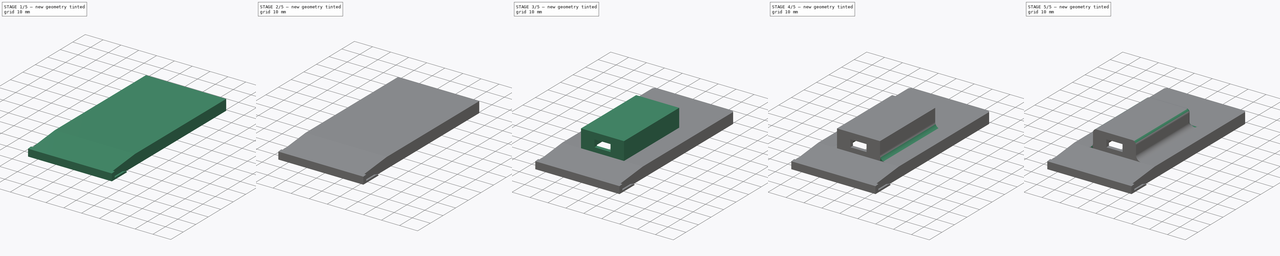
[diagram: build sequence overview — one tinted view per stage of 5, left to right]
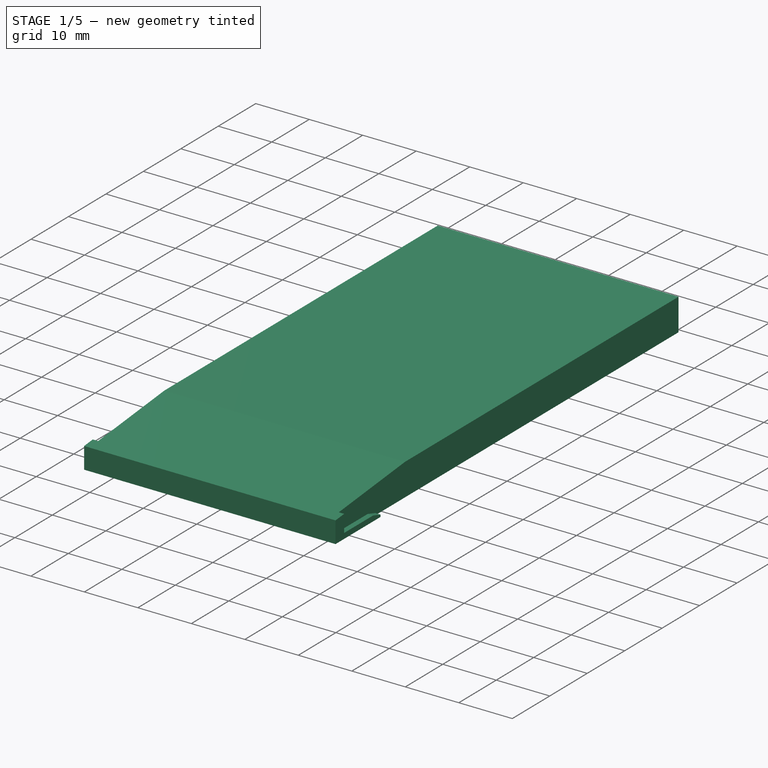
[diagram: stage 1 of 5 — iso view after this stage's code; geometry added in this stage tinted green]
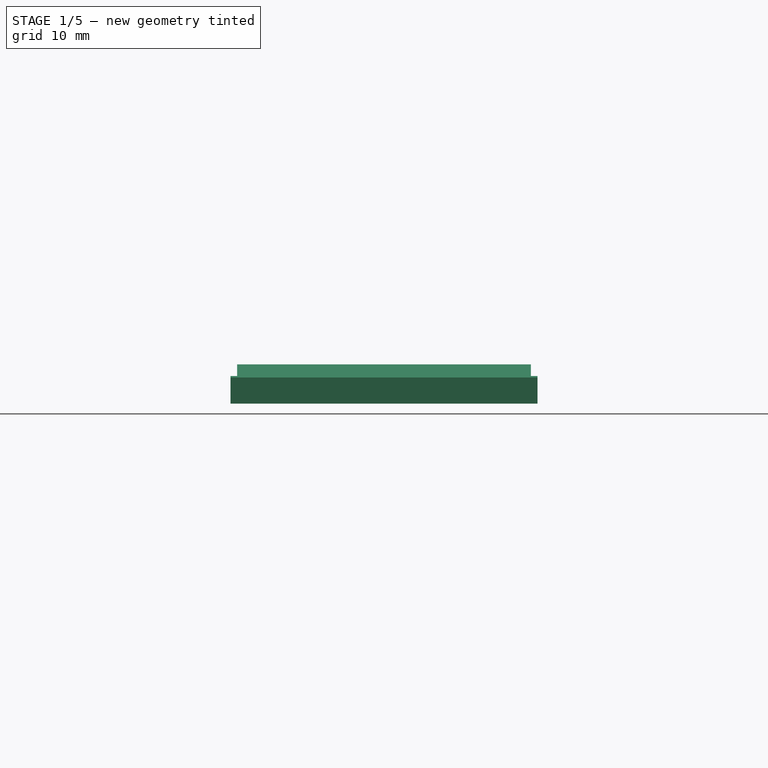
[diagram: stage 1 of 5 — front view after this stage's code; geometry added in this stage tinted green]
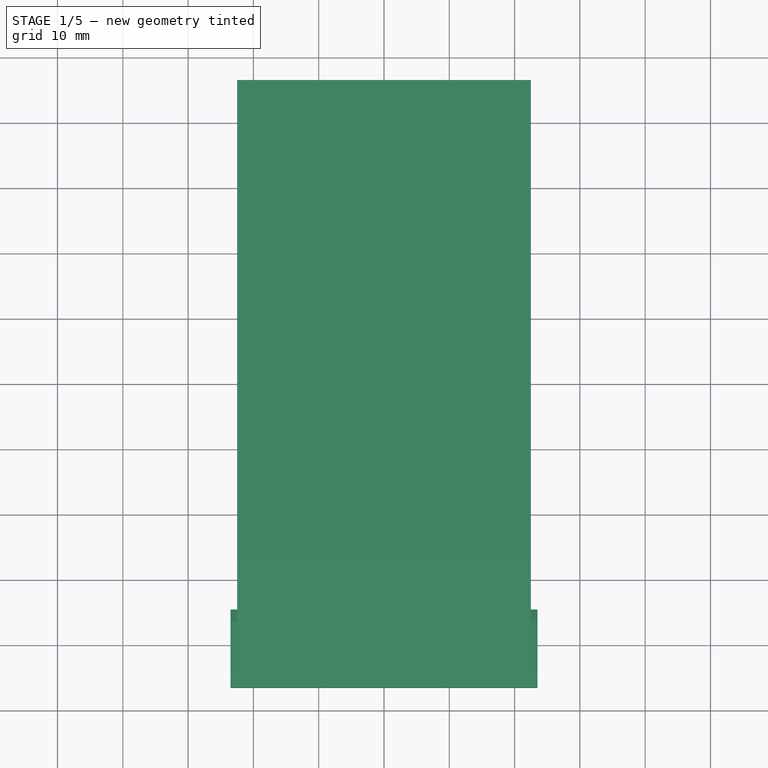
[diagram: stage 1 of 5 — top view after this stage's code; geometry added in this stage tinted green]
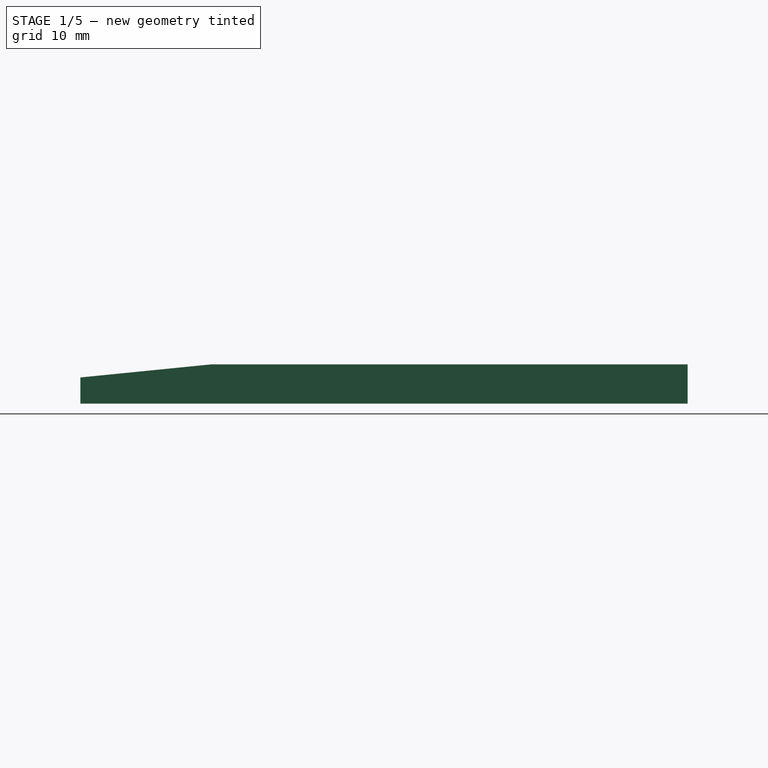
[diagram: stage 1 of 5 — right view after this stage's code; geometry added in this stage tinted green]
FCSTD DOCUMENT  (FreeCAD 0.20R29410 (Git))
Label: jumper_t16_bat_cover
License: All rights reserved
LicenseURL: http://en.wikipedia.org/wiki/All_rights_reserved
objects: Sketcher::SketchObject×13, PartDesign::Fillet×12, PartDesign::Pad×7, PartDesign::Pocket×6, PartDesign::Body×1
note: 64 computed .brp shape members not serialized (recipe doc carries the construction recipe); baked Part::Feature solids carry a one-line shape summary decoded from their .brp

FEATURE [Sketcher::SketchObject] Sketch
  FullyConstrained = true
  MapMode = 5
  Support = -> [XY_Plane]
  sketch-geometry (4):
    g0: LineSegment StartX=-22.5 StartY=46.5 StartZ=0 EndX=22.5 EndY=46.5 EndZ=0
    g1: LineSegment StartX=22.5 StartY=46.5 StartZ=0 EndX=22.5 EndY=-46.5 EndZ=0
    g2: LineSegment StartX=22.5 StartY=-46.5 StartZ=0 EndX=-22.5 EndY=-46.5 EndZ=0
    g3: LineSegment StartX=-22.5 StartY=-46.5 StartZ=0 EndX=-22.5 EndY=46.5 EndZ=0
  constraints (10):
    c: Coincident(g0,g1)
    c: Coincident(g1,g2)
    c: Coincident(g2,g3)
    c: Coincident(g3,g0)
    c: Horizontal(g0)
    c: Vertical(g3)
    c: DistanceX(g2,g2) = 45
    c: Symmetric(g2,g1,g-2)
    c: Symmetric(g1,g0,g-1)
    c: DistanceY(g1,g1) = 93
FEATURE [PartDesign::Pad] Pad
  Direction = (0,0,1)
  Length = 6
  Length2 = 10
  Profile = -> Sketch
  ReferenceAxis = -> Sketch [N_Axis]
  Type = 0
FEATURE [Sketcher::SketchObject] Sketch001
  ExternalGeometry = -> [Pad]
  FullyConstrained = true
  MapMode = 5
  Placement = pos=(22.5,0,0) rot=(0.57735,0.57735,0.57735;2.0944rad)
  Support = -> [Pad]
  sketch-geometry (3):
    g0: LineSegment StartX=-46.5 StartY=4 StartZ=0 EndX=-26.5 EndY=6 EndZ=0
    g1: LineSegment StartX=-46.5 StartY=6 StartZ=0 EndX=-26.5 EndY=6 EndZ=0
    g2: LineSegment StartX=-46.5 StartY=4 StartZ=0 EndX=-46.5 EndY=6 EndZ=0
  constraints (8):
    c: PointOnObject(g0,g-4)
    c: PointOnObject(g0,g-3)
    c: Coincident(g1,g-4)
    c: Coincident(g1,g0)
    c: Coincident(g2,g0)
    c: Coincident(g2,g1)
    c: DistanceX(g1,g1) = 20
    c: DistanceY(g2,g2) = 2
FEATURE [PartDesign::Pocket] Pocket
  BaseFeature = -> Pad
  Direction = (-1,0,0)
  Length = 45
  Length2 = 5
  Profile = -> Sketch001
  ReferenceAxis = -> Sketch001 [N_Axis]
  Type = 0
FEATURE [Sketcher::SketchObject] Sketch002
  ExternalGeometry = -> [Pocket]
  FullyConstrained = true
  MapMode = 5
  Placement = pos=(22.5,0,0) rot=(0.57735,0.57735,0.57735;2.0944rad)
  Support = -> [Pocket]
  sketch-geometry (7):
    g0: LineSegment StartX=-46.5 StartY=0 StartZ=0 EndX=-34.5 EndY=0 EndZ=0
    g1: LineSegment StartX=-34.5 StartY=0 StartZ=0 EndX=-34.5 EndY=0.4 EndZ=0
    g2: LineSegment StartX=-36.5 StartY=1 StartZ=0 EndX=-44.2 EndY=1 EndZ=0
    g3: LineSegment StartX=-44.2 StartY=1 StartZ=0 EndX=-44.2 EndY=4.23 EndZ=0
    g4: LineSegment StartX=-44.2 StartY=4.23 StartZ=0 EndX=-46.5 EndY=4 EndZ=0
    g5: LineSegment StartX=-46.5 StartY=4 StartZ=0 EndX=-46.5 EndY=0 EndZ=0
    g6: LineSegment StartX=-36.5 StartY=1 StartZ=0 EndX=-34.5 EndY=0.4 EndZ=0
  constraints (19):
    c: Coincident(g0,g-4)
    c: PointOnObject(g0,g-4)
    c: Coincident(g1,g0)
    c: Vertical(g1)
    c: Horizontal(g2)
    c: Coincident(g3,g2)
    c: PointOnObject(g3,g-5)
    c: Vertical(g3)
    c: Coincident(g4,g3)
    c: Coincident(g4,g-5)
    c: Coincident(g5,g4)
    c: Coincident(g5,g0)
    c: DistanceX(g0,g0) = 12
    c: DistanceY(g1,g1) = 0.4
    c: DistanceY(g0,g2) = 1
    c: Coincident(g6,g2)
    c: Coincident(g6,g1)
    c: DistanceX(g2,g1) = 2
    c: DistanceX(g0,g2) = 2.3
FEATURE [PartDesign::Pad] Pad001
  BaseFeature = -> Pocket
  Direction = (1,0,0)
  Length = 1
  Length2 = 10
  Profile = -> Sketch002
  ReferenceAxis = -> Sketch002 [N_Axis]
  Type = 0
FEATURE [Sketcher::SketchObject] Sketch003
  ExternalGeometry = -> [Pad001]
  FullyConstrained = true
  MapMode = 5
  Placement = pos=(-22.5,0,0) rot=(0.57735,-0.57735,-0.57735;2.0944rad)
  Support = -> [Pad001]
  sketch-geometry (7):
    g0: LineSegment StartX=34.5 StartY=0 StartZ=0 EndX=46.5 EndY=0 EndZ=0
    g1: LineSegment StartX=46.5 StartY=0 StartZ=0 EndX=46.5 EndY=4 EndZ=0
    g2: LineSegment StartX=46.5 StartY=4 StartZ=0 EndX=44.2 EndY=4.23 EndZ=0
    g3: LineSegment StartX=44.2 StartY=4.23 StartZ=0 EndX=44.2 EndY=1 EndZ=0
    g4: LineSegment StartX=44.2 StartY=1 StartZ=0 EndX=36.5 EndY=1 EndZ=0
    g5: LineSegment StartX=36.5 StartY=1 StartZ=0 EndX=34.5 EndY=0.4 EndZ=0
    g6: LineSegment StartX=34.5 StartY=0.4 StartZ=0 EndX=34.5 EndY=0 EndZ=0
  constraints (19):
    c: PointOnObject(g0,g-5)
    c: Coincident(g0,g-5)
    c: Coincident(g1,g0)
    c: Coincident(g1,g-4)
    c: Coincident(g2,g1)
    c: PointOnObject(g2,g-4)
    c: Coincident(g3,g2)
    c: Vertical(g3)
    c: Coincident(g4,g3)
    c: Horizontal(g4)
    c: Coincident(g5,g4)
    c: Coincident(g6,g5)
    c: Coincident(g6,g0)
    c: Vertical(g6)
    c: DistanceY(g6,g6) = 0.4
    c: DistanceY(g0,g3) = 1
    c: DistanceX(g5,g4) = 2
    c: DistanceX(g3,g0) = 2.3
    c: DistanceX(g0,g0) = 12
FEATURE [PartDesign::Pad] Pad002
  BaseFeature = -> Pad001
  Direction = (-1,0,0)
  Length = 1
  Length2 = 10
  Profile = -> Sketch003
  ReferenceAxis = -> Sketch003 [N_Axis]
  Type = 0
FEATURE [Sketcher::SketchObject] Sketch004
  ExternalGeometry = -> [Pad002]
  FullyConstrained = true
  MapMode = 5
  Placement = pos=(0,0,0) rot=(0.57735,0.57735,0.57735;2.0944rad)
  Support = -> [YZ_Plane]
  sketch-geometry (5):
    g0: LineSegment StartX=45 StartY=6.2e-15 StartZ=0 EndX=45 EndY=4.5 EndZ=0
    g1: LineSegment StartX=45 StartY=4.5 StartZ=0 EndX=-26.5 EndY=4.5 EndZ=0
    g2: LineSegment StartX=-26.5 StartY=4.5 StartZ=0 EndX=-45 EndY=2.65 EndZ=0
    g3: LineSegment StartX=-45 StartY=2.65 StartZ=0 EndX=-45 EndY=-1.91e-14 EndZ=0
    g4: LineSegment StartX=-45 StartY=-1.9e-14 StartZ=0 EndX=45 EndY=6.2e-15 EndZ=0
  constraints (15):
    c: PointOnObject(g0,g-8)
    c: Vertical(g0)
    c: Coincident(g1,g0)
    c: Horizontal(g1)
    c: Coincident(g2,g1)
    c: Coincident(g3,g2)
    c: PointOnObject(g3,g-9)
    c: Vertical(g3)
    c: Coincident(g4,g3)
    c: Coincident(g4,g0)
    c: DistanceX(g0,g-8) = 1.5
    c: DistanceY(g0,g-4) = 1.5
    c: DistanceX(g-7,g1) = 20
    c: DistanceX(g-7,g2) = 1.5
    c: Parallel(g-5,g2)
FEATURE [PartDesign::Pocket] Pocket001
  BaseFeature = -> Pad002
  Direction = (-1,2e-16,-3e-16)
  Length = 42
  Length2 = 5
  Midplane = true
  Profile = -> Sketch004
  ReferenceAxis = -> Sketch004 [N_Axis]
  Type = 0
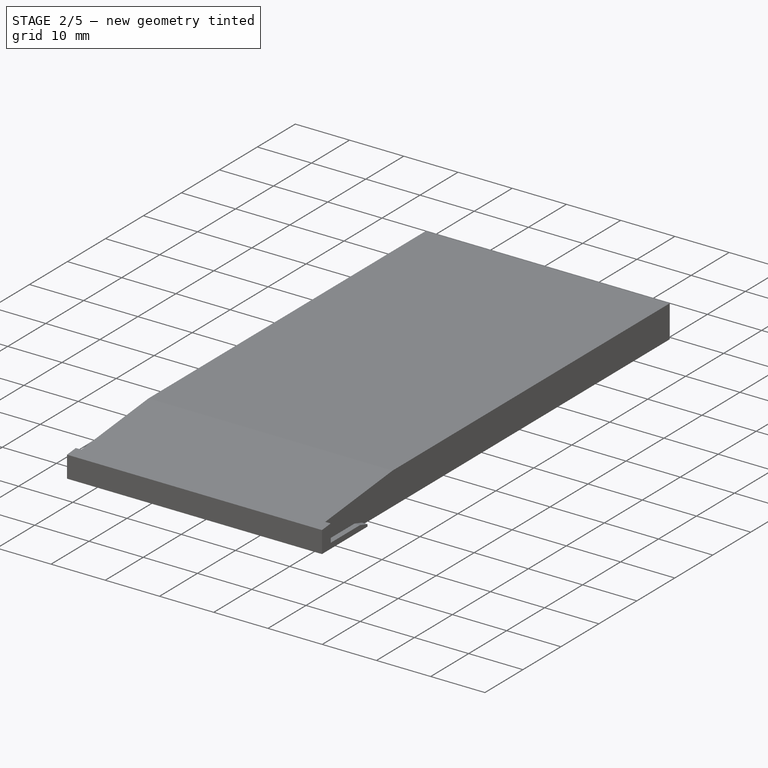
[diagram: stage 2 of 5 — iso view after this stage's code; geometry added in this stage tinted green]
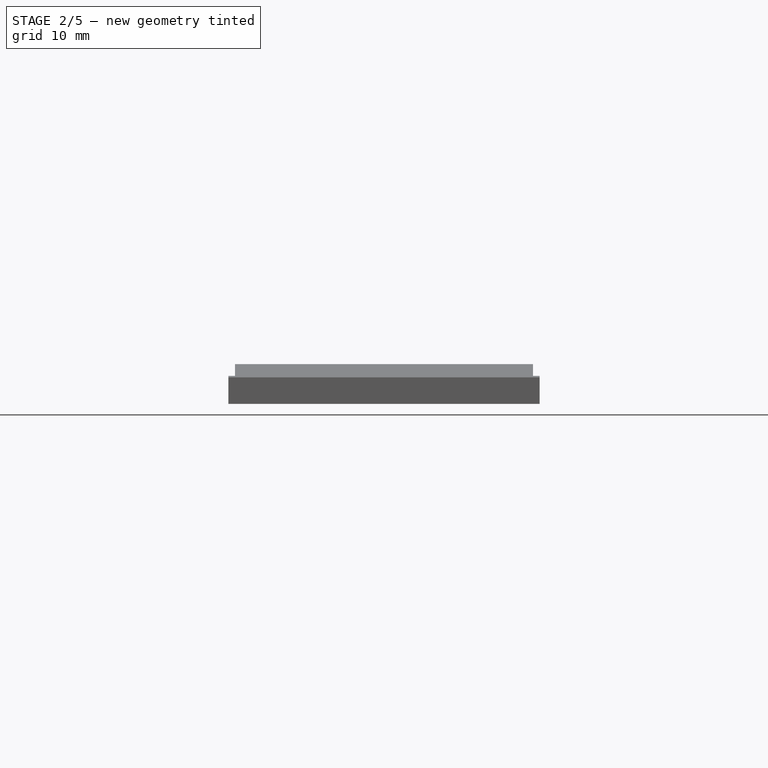
[diagram: stage 2 of 5 — front view after this stage's code; geometry added in this stage tinted green]
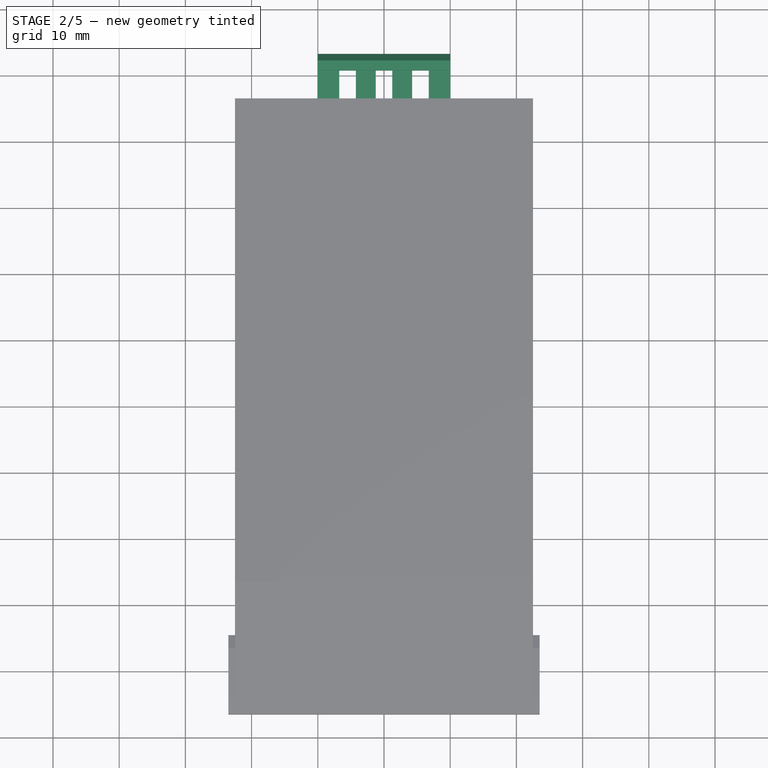
[diagram: stage 2 of 5 — top view after this stage's code; geometry added in this stage tinted green]
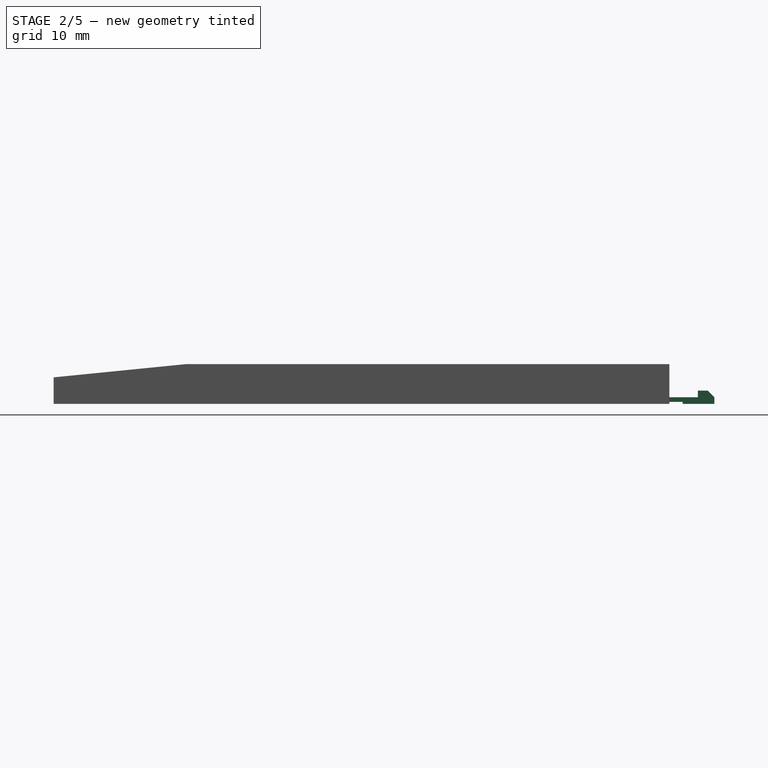
[diagram: stage 2 of 5 — right view after this stage's code; geometry added in this stage tinted green]
FEATURE [Sketcher::SketchObject] Sketch005
  ExternalGeometry = -> [Pocket001]
  FullyConstrained = true
  MapMode = 5
  Placement = pos=(0,0,0) rot=(0.57735,0.57735,0.57735;2.0944rad)
  Support = -> [YZ_Plane]
  sketch-geometry (7):
    g0: LineSegment StartX=46.5 StartY=6.7e-15 StartZ=0 EndX=53.3 EndY=0 EndZ=0
    g1: LineSegment StartX=53.3 StartY=0 StartZ=0 EndX=53.3 EndY=1 EndZ=0
    g2: LineSegment StartX=53.3 StartY=1 StartZ=0 EndX=52.3 EndY=2 EndZ=0
    g3: LineSegment StartX=52.3 StartY=2 StartZ=0 EndX=50.8 EndY=2 EndZ=0
    g4: LineSegment StartX=50.8 StartY=2 StartZ=0 EndX=50.8 EndY=1 EndZ=0
    g5: LineSegment StartX=50.8 StartY=1 StartZ=0 EndX=46.5 EndY=1 EndZ=0
    g6: LineSegment StartX=46.5 StartY=1 StartZ=0 EndX=46.5 EndY=6.7e-15 EndZ=0
  constraints (20):
    c: Coincident(g0,g-3)
    c: PointOnObject(g0,g-1)
    c: Coincident(g1,g0)
    c: Vertical(g1)
    c: Coincident(g2,g1)
    c: Coincident(g3,g2)
    c: Horizontal(g3)
    c: Coincident(g4,g3)
    c: Vertical(g4)
    c: Coincident(g5,g4)
    c: PointOnObject(g5,g-3)
    c: Horizontal(g5)
    c: Coincident(g6,g5)
    c: Coincident(g6,g0)
    c: DistanceY(g1,g1) = 1
    c: Angle(g2) = 2.35619
    c: DistanceY(g0,g2) = 2
    c: DistanceX(g4,g0) = 2.5
    c: DistanceX(g0,g0) = 6.8
    c: DistanceY(g6,g6) = 1
FEATURE [PartDesign::Pad] Pad003
  BaseFeature = -> Pocket001
  Direction = (1,-2e-16,3e-16)
  Length = 20
  Length2 = 10
  Midplane = true
  Profile = -> Sketch005
  ReferenceAxis = -> Sketch005 [N_Axis]
  Type = 0
FEATURE [Sketcher::SketchObject] Sketch006
  ExternalGeometry = -> [Pad003]
  FullyConstrained = true
  MapMode = 5
  Placement = pos=(-3e-16,2e-16,1) rot=(0,0,1;0rad)
  Support = -> [Pad003]
  sketch-geometry (12):
    g0: LineSegment StartX=-6.75 StartY=50.8 StartZ=0 EndX=-4.25 EndY=50.8 EndZ=0
    g1: LineSegment StartX=-4.25 StartY=50.8 StartZ=0 EndX=-4.25 EndY=46.5 EndZ=0
    g2: LineSegment StartX=-4.25 StartY=46.5 StartZ=0 EndX=-6.75 EndY=46.5 EndZ=0
    g3: LineSegment StartX=-6.75 StartY=46.5 StartZ=0 EndX=-6.75 EndY=50.8 EndZ=0
    g4: LineSegment StartX=-1.25 StartY=50.8 StartZ=0 EndX=1.25 EndY=50.8 EndZ=0
    g5: LineSegment StartX=1.25 StartY=50.8 StartZ=0 EndX=1.25 EndY=46.5 EndZ=0
    g6: LineSegment StartX=1.25 StartY=46.5 StartZ=0 EndX=-1.25 EndY=46.5 EndZ=0
    g7: LineSegment StartX=-1.25 StartY=46.5 StartZ=0 EndX=-1.25 EndY=50.8 EndZ=0
    g8: LineSegment StartX=4.25 StartY=50.8 StartZ=0 EndX=6.75 EndY=50.8 EndZ=0
    g9: LineSegment StartX=6.75 StartY=50.8 StartZ=0 EndX=6.75 EndY=46.5 EndZ=0
    g10: LineSegment StartX=6.75 StartY=46.5 StartZ=0 EndX=4.25 EndY=46.5 EndZ=0
    g11: LineSegment StartX=4.25 StartY=46.5 StartZ=0 EndX=4.25 EndY=50.8 EndZ=0
  constraints (35):
    c: Coincident(g0,g1)
    c: Coincident(g1,g2)
    c: Coincident(g2,g3)
    c: Coincident(g3,g0)
    c: Horizontal(g0)
    c: Horizontal(g2)
    c: Vertical(g1)
    c: Vertical(g3)
    c: PointOnObject(g0,g-4)
    c: PointOnObject(g1,g-3)
    c: Coincident(g4,g5)
    c: Coincident(g5,g6)
    c: Coincident(g6,g7)
    c: Coincident(g7,g4)
    c: Horizontal(g6)
    c: Vertical(g5)
    c: Vertical(g7)
    c: PointOnObject(g4,g-4)
    c: PointOnObject(g5,g-3)
    c: Coincident(g8,g9)
    c: Coincident(g9,g10)
    c: Coincident(g10,g11)
    c: Coincident(g11,g8)
    c: Horizontal(g8)
    c: Horizontal(g10)
    c: Vertical(g9)
    c: Vertical(g11)
    c: PointOnObject(g8,g-4)
    c: PointOnObject(g9,g-3)
    c: Equal(g10,g6)
    c: Equal(g6,g2)
    c: DistanceX(g8,g8) = 2.5
    c: Symmetric(g4,g4,g-2)
    c: DistanceX(g0,g4) = 3
    c: DistanceX(g4,g8) = 3
FEATURE [PartDesign::Pocket] Pocket002
  BaseFeature = -> Pad003
  Direction = (3e-16,-2e-16,-1)
  Length = 5
  Length2 = 5
  Profile = -> Sketch006
  ReferenceAxis = -> Sketch006 [N_Axis]
  Type = 1
FEATURE [Sketcher::SketchObject] Sketch007
  ExternalGeometry = -> [Pocket002]
  FullyConstrained = true
  MapMode = 5
  Placement = pos=(0,0,5.22e-14) rot=(1,0,0;3.14159rad)
  Support = -> [Pocket002]
  sketch-geometry (4):
    g0: LineSegment StartX=-10 StartY=-46.5 StartZ=0 EndX=10 EndY=-46.5 EndZ=0
    g1: LineSegment StartX=10 StartY=-46.5 StartZ=0 EndX=10 EndY=-48.5 EndZ=0
    g2: LineSegment StartX=10 StartY=-48.5 StartZ=0 EndX=-10 EndY=-48.5 EndZ=0
    g3: LineSegment StartX=-10 StartY=-48.5 StartZ=0 EndX=-10 EndY=-46.5 EndZ=0
  constraints (11):
    c: Coincident(g0,g1)
    c: Coincident(g1,g2)
    c: Coincident(g2,g3)
    c: Coincident(g3,g0)
    c: Horizontal(g0)
    c: Horizontal(g2)
    c: Vertical(g1)
    c: Vertical(g3)
    c: Coincident(g0,g-3)
    c: PointOnObject(g1,g-4)
    c: DistanceY(g1,g1) = 2
FEATURE [PartDesign::Pocket] Pocket003
  BaseFeature = -> Pocket002
  Direction = (-3e-16,1.2e-15,1)
  Length = 0.3
  Length2 = 5
  Profile = -> Sketch007
  ReferenceAxis = -> Sketch007 [N_Axis]
  Type = 0
FEATURE [Sketcher::SketchObject] Sketch008
  ExternalGeometry = -> [Pocket003]
  FullyConstrained = true
  Placement = pos=(4.5,0,0) rot=(0.57735,0.57735,0.57735;2.0944rad)
  sketch-geometry (3):
    g0: LineSegment StartX=45 StartY=0 StartZ=0 EndX=33 EndY=4.5 EndZ=0
    g1: LineSegment StartX=33 StartY=4.5 StartZ=0 EndX=45 EndY=4.5 EndZ=0
    g2: LineSegment StartX=45 StartY=4.5 StartZ=0 EndX=45 EndY=0 EndZ=0
  constraints (7):
    c: Coincident(g0,g-3)
    c: PointOnObject(g0,g-4)
    c: Coincident(g1,g0)
    c: Coincident(g1,g-4)
    c: Coincident(g2,g1)
    c: Coincident(g2,g0)
    c: DistanceX(g1,g1) = 12
FEATURE [PartDesign::Pad] Pad004
  BaseFeature = -> Pocket003
  Direction = (1,0,0)
  Length = 1
  Length2 = 10
  Profile = -> Sketch008
  ReferenceAxis = -> Sketch008 [N_Axis]
  Type = 0
FEATURE [Sketcher::SketchObject] Sketch009
  ExternalGeometry = -> [Pad004]
  FullyConstrained = true
  Placement = pos=(-4.5,0,0) rot=(0.57735,0.57735,0.57735;2.0944rad)
  sketch-geometry (3):
    g0: LineSegment StartX=45 StartY=0 StartZ=0 EndX=45 EndY=4.5 EndZ=0
    g1: LineSegment StartX=45 StartY=4.5 StartZ=0 EndX=33 EndY=4.5 EndZ=0
    g2: LineSegment StartX=33 StartY=4.5 StartZ=0 EndX=45 EndY=0 EndZ=0
  constraints (7):
    c: Coincident(g0,g-4)
    c: Coincident(g0,g-4)
    c: Coincident(g1,g0)
    c: PointOnObject(g1,g-3)
    c: Coincident(g2,g1)
    c: Coincident(g2,g0)
    c: DistanceX(g1,g1) = 12
FEATURE [PartDesign::Pad] Pad005
  BaseFeature = -> Pad004
  Direction = (1,0,0)
  Length = 1
  Length2 = 10
  Profile = -> Sketch009
  ReferenceAxis = -> Sketch009 [N_Axis]
  Reversed = true
  Type = 0
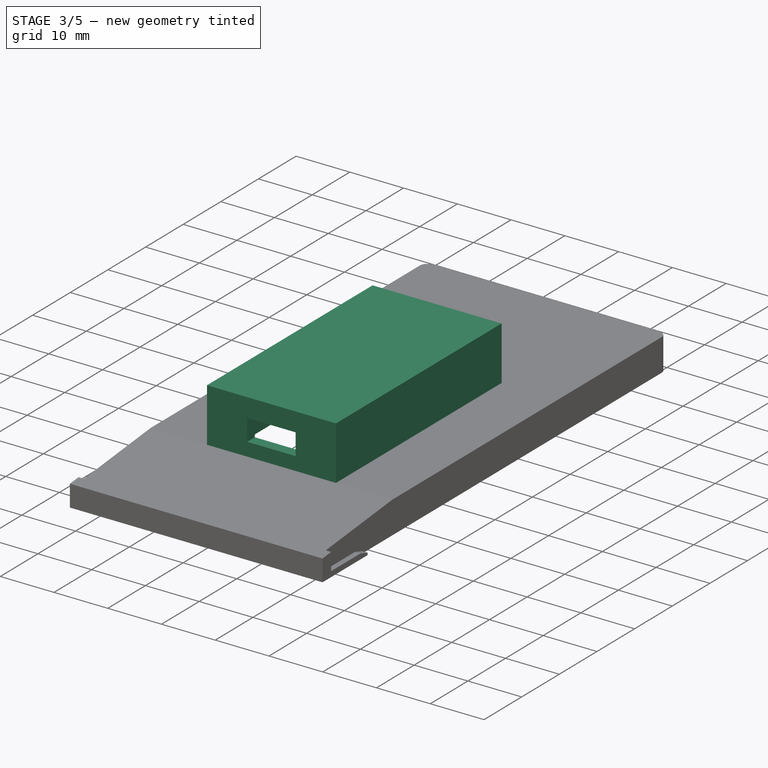
[diagram: stage 3 of 5 — iso view after this stage's code; geometry added in this stage tinted green]
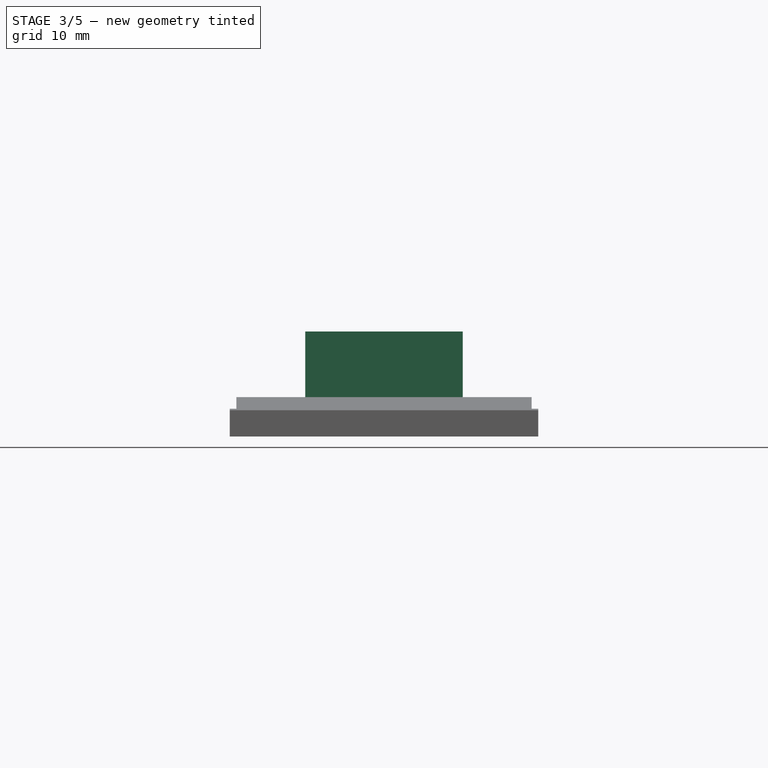
[diagram: stage 3 of 5 — front view after this stage's code; geometry added in this stage tinted green]
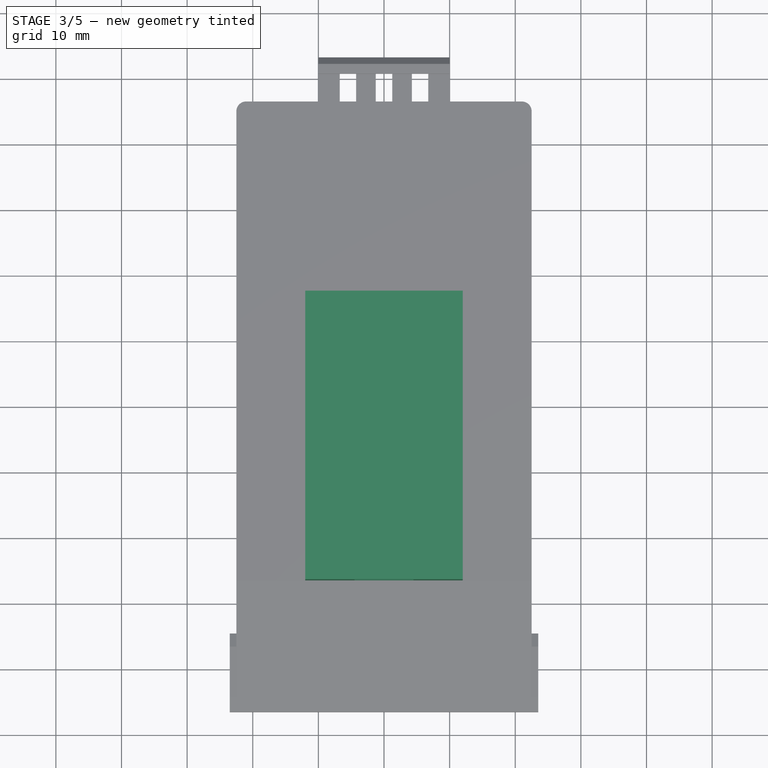
[diagram: stage 3 of 5 — top view after this stage's code; geometry added in this stage tinted green]
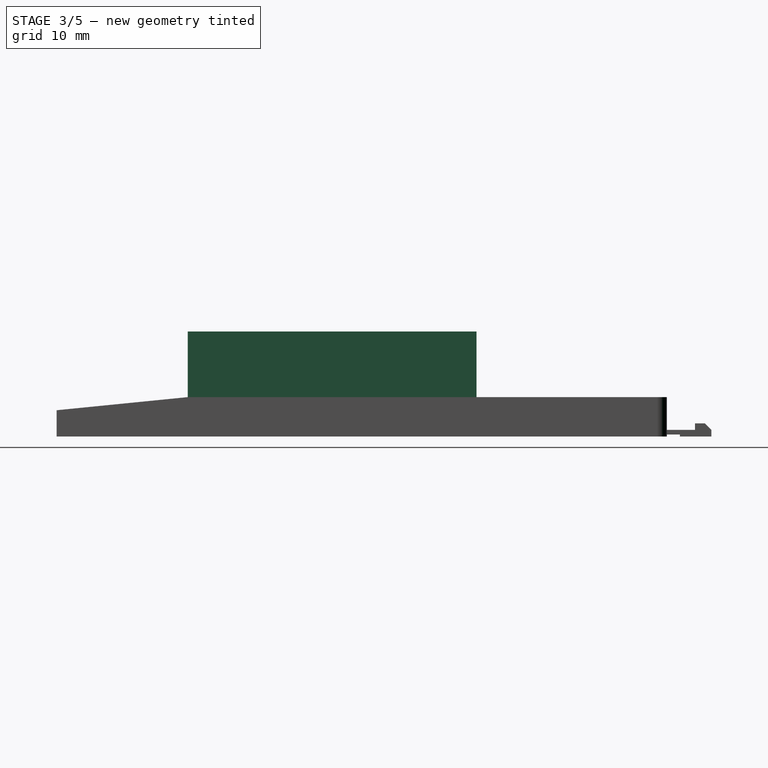
[diagram: stage 3 of 5 — right view after this stage's code; geometry added in this stage tinted green]
FEATURE [PartDesign::Fillet] Fillet
  Base = -> Pad005 [Edge14]
  BaseFeature = -> Pad005
  Radius = 1.5
  SupportTransform = false
  UseAllEdges = false
FEATURE [PartDesign::Fillet] Fillet001
  Base = -> Fillet [Edge6]
  BaseFeature = -> Fillet
  Radius = 1.5
  SupportTransform = false
  UseAllEdges = false
FEATURE [Sketcher::SketchObject] Sketch010
  ExternalGeometry = -> [Fillet001]
  FullyConstrained = true
  MapMode = 5
  Placement = pos=(0,0,6) rot=(0,0,1;0rad)
  Support = -> [Fillet001]
  sketch-geometry (4):
    g0: LineSegment StartX=-12 StartY=-26.5 StartZ=0 EndX=12 EndY=-26.5 EndZ=0
    g1: LineSegment StartX=12 StartY=-26.5 StartZ=0 EndX=12 EndY=17.5 EndZ=0
    g2: LineSegment StartX=12 StartY=17.5 StartZ=0 EndX=-12 EndY=17.5 EndZ=0
    g3: LineSegment StartX=-12 StartY=17.5 StartZ=0 EndX=-12 EndY=-26.5 EndZ=0
  constraints (11):
    c: Coincident(g0,g1)
    c: Coincident(g1,g2)
    c: Coincident(g2,g3)
    c: Coincident(g3,g0)
    c: Horizontal(g2)
    c: Vertical(g1)
    c: Vertical(g3)
    c: PointOnObject(g0,g-3)
    c: DistanceX(g2,g2) = 24
    c: DistanceY(g1,g1) = 44
    c: Symmetric(g0,g0,g-2)
FEATURE [PartDesign::Pad] Pad006
  BaseFeature = -> Fillet001
  Direction = (0,0,1)
  Length = 10
  Length2 = 10
  Profile = -> Sketch010
  ReferenceAxis = -> Sketch010 [N_Axis]
  Type = 0
FEATURE [Sketcher::SketchObject] Sketch011
  ExternalGeometry = -> [Pad006]
  FullyConstrained = true
  MapMode = 5
  Placement = pos=(0,-26.5,0) rot=(1,0,0;1.5708rad)
  Support = -> [Pad006]
  sketch-geometry (4):
    g0: LineSegment StartX=-4.5 StartY=12.5 StartZ=0 EndX=4.5 EndY=12.5 EndZ=0
    g1: LineSegment StartX=4.5 StartY=12.5 StartZ=0 EndX=4.5 EndY=8.5 EndZ=0
    g2: LineSegment StartX=4.5 StartY=8.5 StartZ=0 EndX=-4.5 EndY=8.5 EndZ=0
    g3: LineSegment StartX=-4.5 StartY=8.5 StartZ=0 EndX=-4.5 EndY=12.5 EndZ=0
  constraints (11):
    c: Coincident(g0,g1)
    c: Coincident(g1,g2)
    c: Coincident(g2,g3)
    c: Coincident(g3,g0)
    c: Horizontal(g2)
    c: Vertical(g1)
    c: Vertical(g3)
    c: DistanceY(g1,g1) = 4
    c: DistanceX(g0,g0) = 9
    c: Symmetric(g0,g0,g-2)
    c: DistanceY(g0,g-3) = 3.5
FEATURE [PartDesign::Pocket] Pocket004
  BaseFeature = -> Pad006
  Direction = (0,1,-2e-16)
  Length = 2
  Length2 = 5
  Profile = -> Sketch011
  ReferenceAxis = -> Sketch011 [N_Axis]
  Type = 0
FEATURE [Sketcher::SketchObject] Sketch012
  ExternalGeometry = -> [Pocket004]
  FullyConstrained = true
  MapMode = 5
  Placement = pos=(-1.2e-15,1e-15,4.5) rot=(1,0,0;3.14159rad)
  Support = -> [Pocket004]
  sketch-geometry (4):
    g0: LineSegment StartX=-10 StartY=24.5 StartZ=0 EndX=10 EndY=24.5 EndZ=0
    g1: LineSegment StartX=10 StartY=24.5 StartZ=0 EndX=10 EndY=-15.5 EndZ=0
    g2: LineSegment StartX=10 StartY=-15.5 StartZ=0 EndX=-10 EndY=-15.5 EndZ=0
    g3: LineSegment StartX=-10 StartY=-15.5 StartZ=0 EndX=-10 EndY=24.5 EndZ=0
  constraints (12):
    c: Coincident(g0,g1)
    c: Coincident(g1,g2)
    c: Coincident(g2,g3)
    c: Coincident(g3,g0)
    c: Horizontal(g0)
    c: Horizontal(g2)
    c: Vertical(g1)
    c: Vertical(g3)
    c: DistanceX(g1,g-4) = 2
    c: DistanceY(g0,g-3) = 2
    c: DistanceX(g-4,g2) = 2
    c: DistanceY(g-4,g1) = 2
FEATURE [PartDesign::Pocket] Pocket005
  BaseFeature = -> Pocket004
  Direction = (-3e-16,2e-16,1)
  Length = 10
  Length2 = 5
  Profile = -> Sketch012
  ReferenceAxis = -> Sketch012 [N_Axis]
  Type = 0
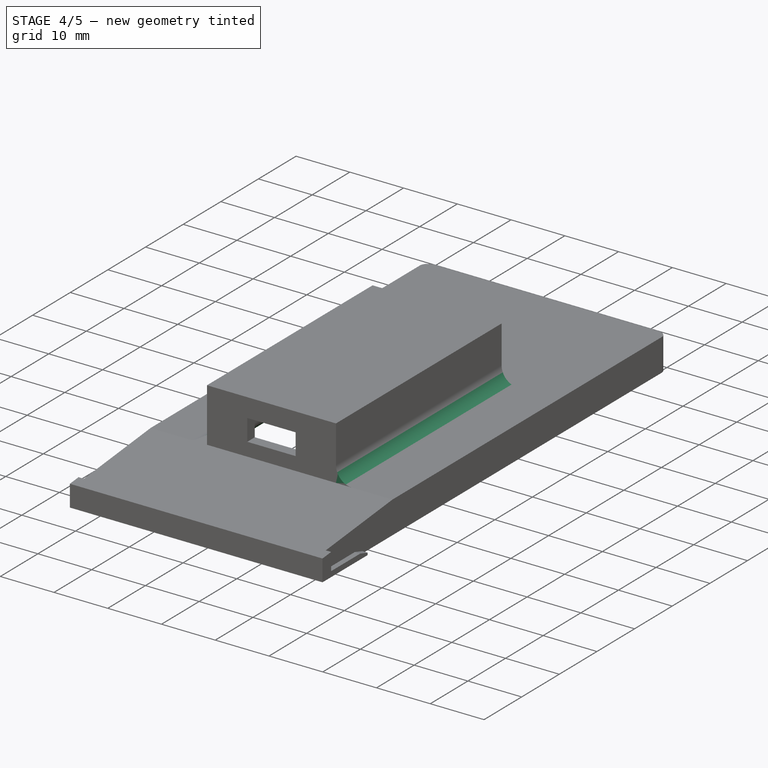
[diagram: stage 4 of 5 — iso view after this stage's code; geometry added in this stage tinted green]
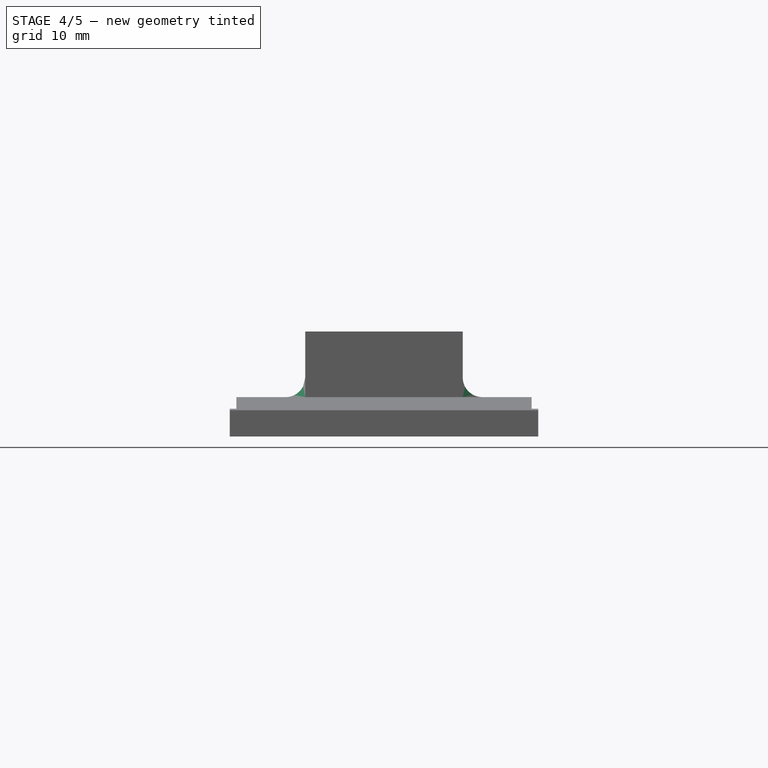
[diagram: stage 4 of 5 — front view after this stage's code; geometry added in this stage tinted green]
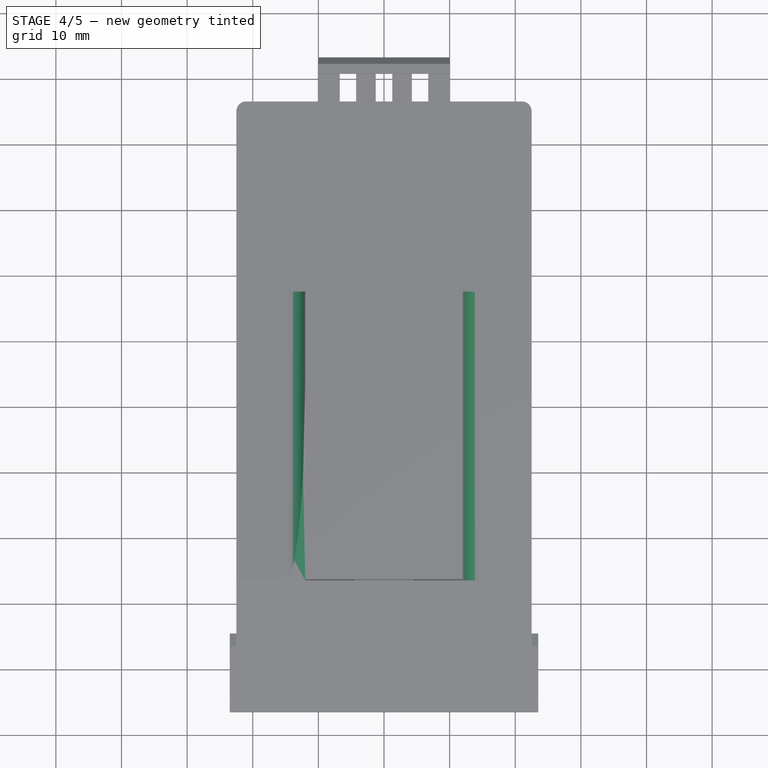
[diagram: stage 4 of 5 — top view after this stage's code; geometry added in this stage tinted green]
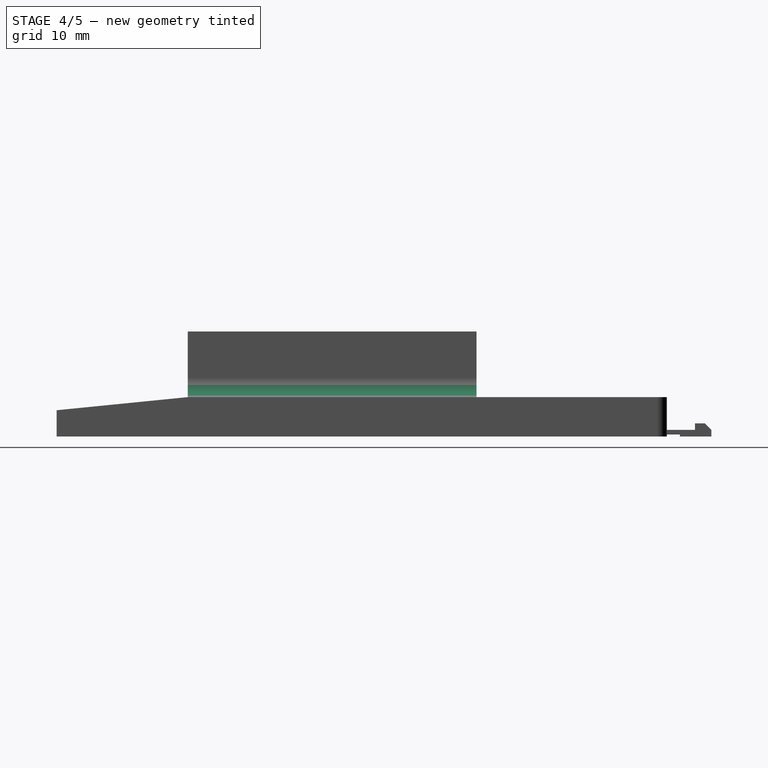
[diagram: stage 4 of 5 — right view after this stage's code; geometry added in this stage tinted green]
FEATURE [PartDesign::Fillet] Fillet002
  Base = -> Pocket005 [Edge222]
  BaseFeature = -> Pocket005
  Radius = 2
  SupportTransform = false
  UseAllEdges = false
FEATURE [PartDesign::Fillet] Fillet003
  Base = -> Fillet002 [Edge6]
  BaseFeature = -> Fillet002
  Radius = 2
  SupportTransform = false
  UseAllEdges = false
FEATURE [PartDesign::Fillet] Fillet004
  Base = -> Fillet003 [Edge6]
  BaseFeature = -> Fillet003
  Radius = 2
  SupportTransform = false
  UseAllEdges = false
FEATURE [PartDesign::Fillet] Fillet005
  Base = -> Fillet004 [Edge148]
  BaseFeature = -> Fillet004
  Radius = 3
  SupportTransform = false
  UseAllEdges = false
FEATURE [PartDesign::Fillet] Fillet006
  Base = -> Fillet005 [Edge28]
  BaseFeature = -> Fillet005
  Radius = 3
  SupportTransform = false
  UseAllEdges = false
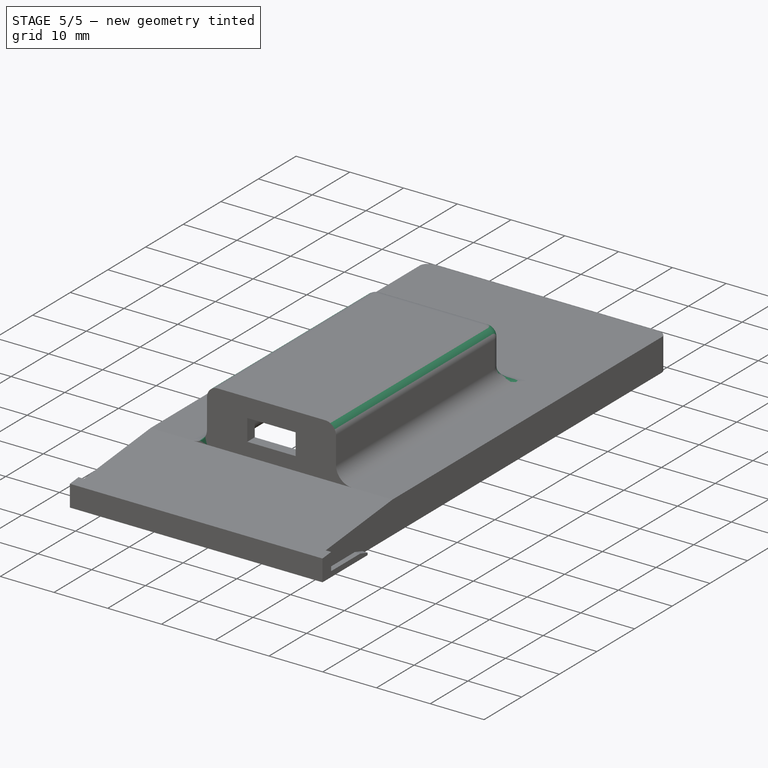
[diagram: stage 5 of 5 — iso view after this stage's code; geometry added in this stage tinted green]
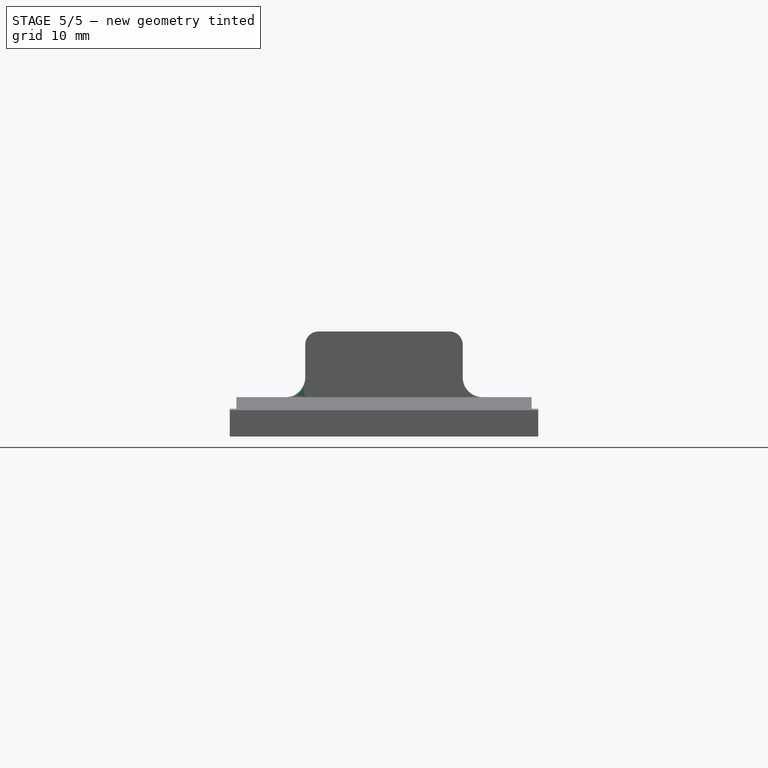
[diagram: stage 5 of 5 — front view after this stage's code; geometry added in this stage tinted green]
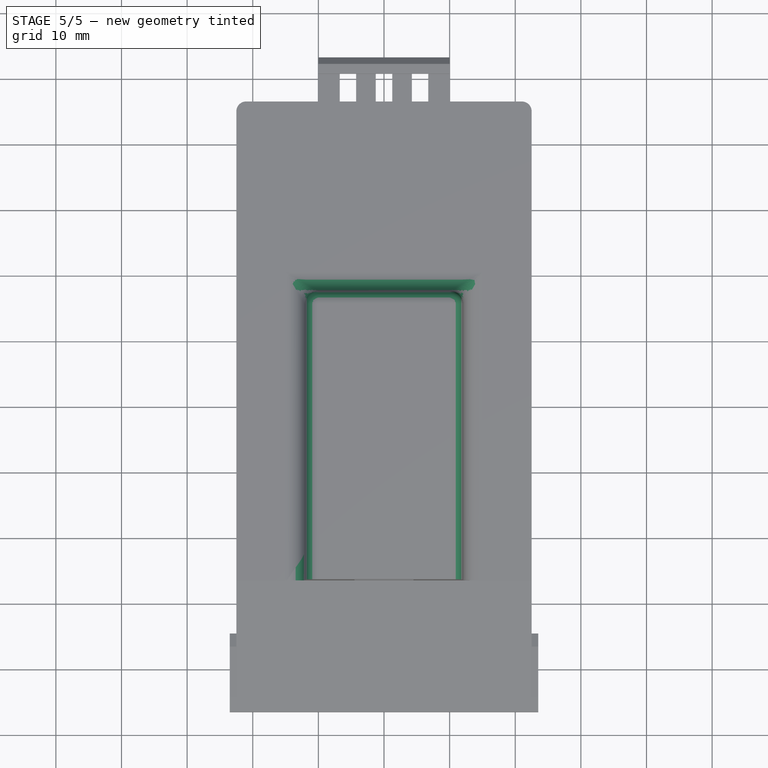
[diagram: stage 5 of 5 — top view after this stage's code; geometry added in this stage tinted green]
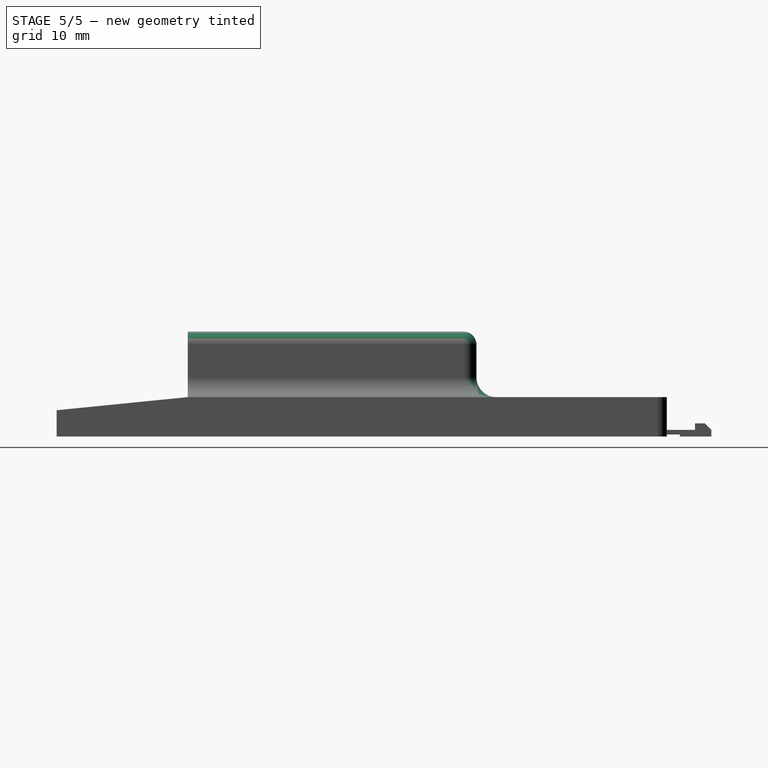
[diagram: stage 5 of 5 — right view after this stage's code; geometry added in this stage tinted green]
FEATURE [PartDesign::Fillet] Fillet007
  Base = -> Fillet006 [Edge6]
  BaseFeature = -> Fillet006
  Radius = 3
  SupportTransform = false
  UseAllEdges = false
FEATURE [PartDesign::Fillet] Fillet008
  Base = -> Fillet007 [Edge4]
  BaseFeature = -> Fillet007
  Radius = 2
  SupportTransform = false
  UseAllEdges = false
FEATURE [PartDesign::Fillet] Fillet009
  Base = -> Fillet008 [Edge15]
  BaseFeature = -> Fillet008
  Radius = 2
  SupportTransform = false
  UseAllEdges = false
FEATURE [PartDesign::Fillet] Fillet010
  Base = -> Fillet009 [Edge11]
  BaseFeature = -> Fillet009
  Radius = 2
  SupportTransform = false
  UseAllEdges = false
FEATURE [PartDesign::Fillet] Fillet011
  Base = -> Fillet010 [Edge34]
  BaseFeature = -> Fillet010
  Radius = 2.5
  SupportTransform = false
  UseAllEdges = false
FEATURE [PartDesign::Body] Body
  Group = -> [Sketch,Pad,Sketch001,Pocket,Sketch002,Pad001,Sketch003,Pad002,Sketch004,Pocket001,Sketch005,Pad003,Sketch006,Pocket002,Sketch007,Pocket003,Sketch008,Pad004,Sketch009,Pad005,Fillet,Fillet001,Sketch010,Pad006,Sketch011,Pocket004,Sketch012,Pocket005,Fillet002,Fillet003,Fillet004,Fillet005,Fillet006,Fillet007,Fillet008,Fillet009,Fillet010,Fillet011]
  Origin = -> Origin
  Tip = -> Fillet011
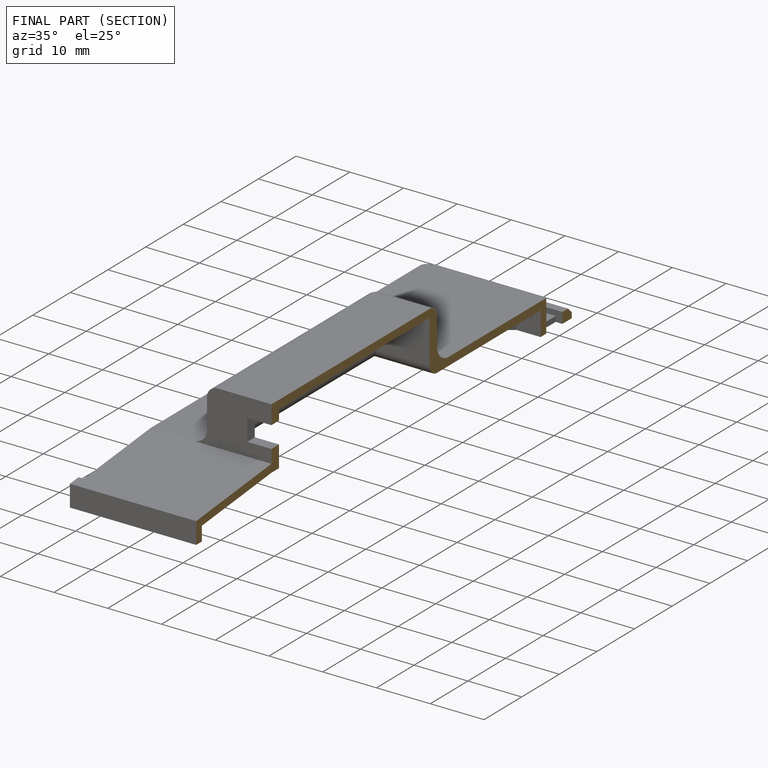
[diagram: finished part — half-section view (interior)]
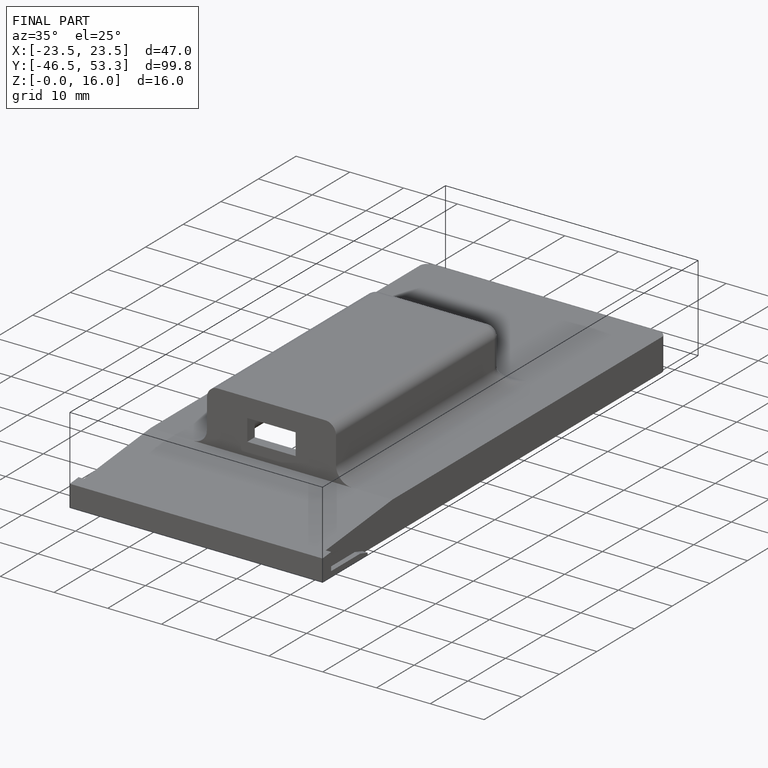
[diagram: finished part — iso view with bounding-box wireframe]
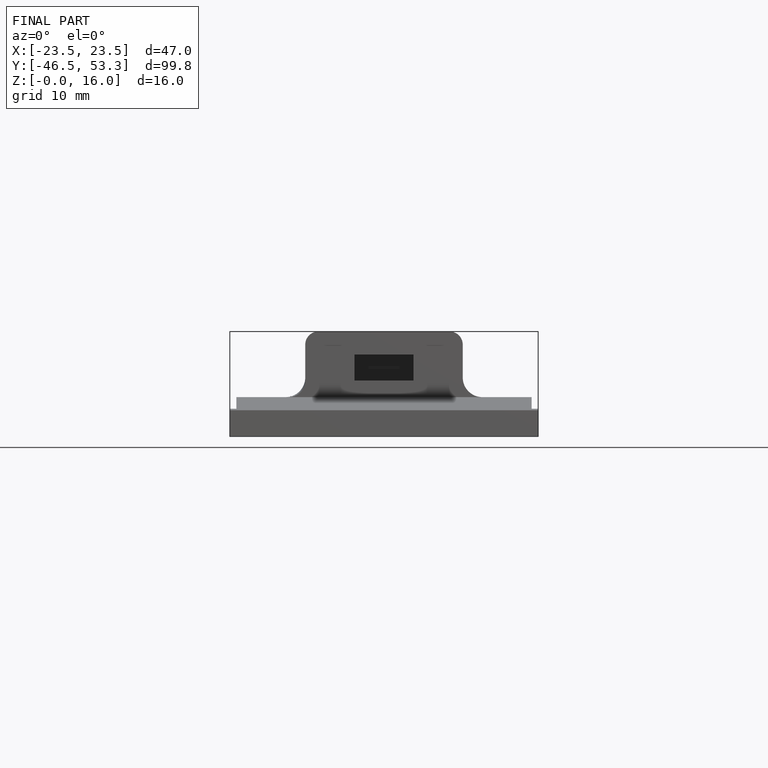
[diagram: finished part — front view with bounding-box wireframe]
